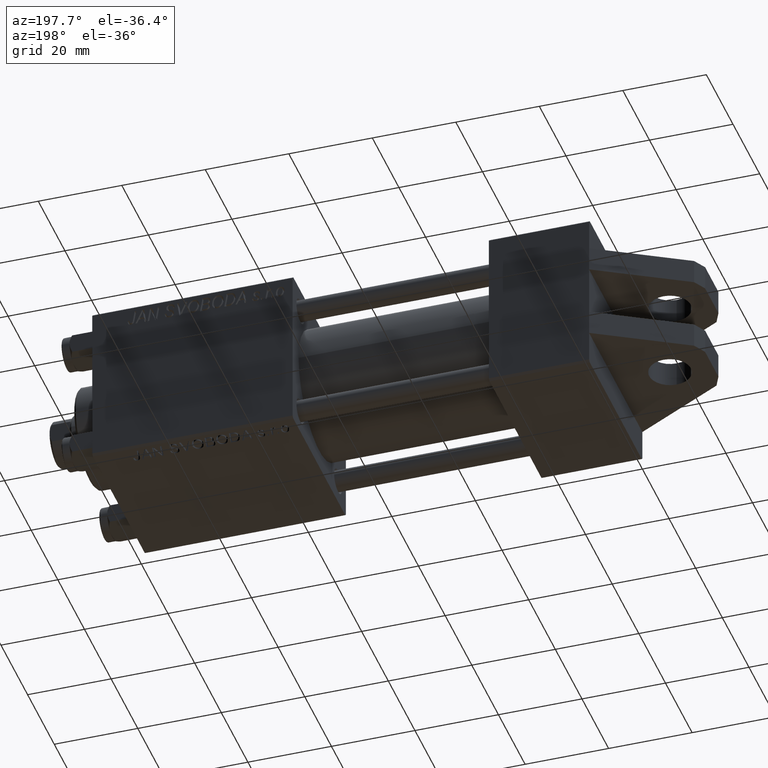
[diagram: clean part render]
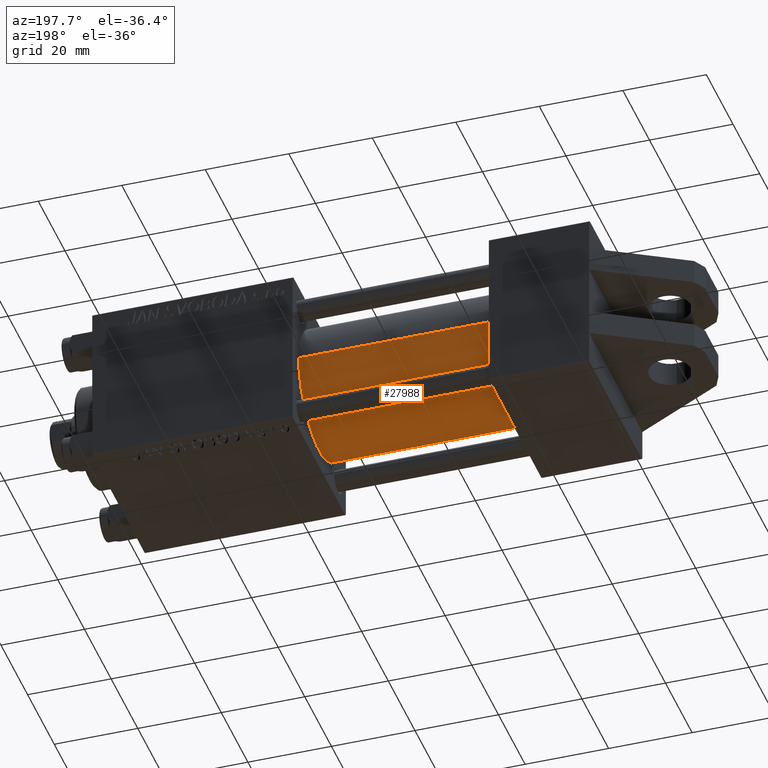
[diagram: same view with one face highlighted and labeled with its STEP entity id]
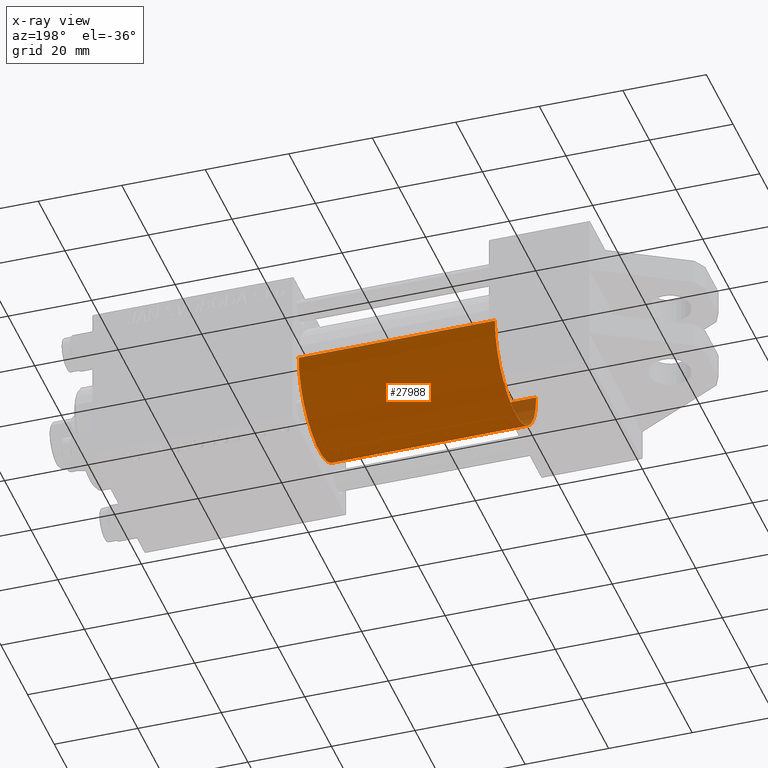
[diagram: x-ray of the same camera — body ghosted, the highlighted face saturated]
A machine part, auxiliary view. The second image highlights one B-rep face of the part: STEP entity #27988.
The next image is the same camera in x-ray: the body ghosted, the highlighted face saturated — about 2% of this face is hidden behind the body in this view.
In plain terms, the highlighted cylindrical surface (partial cylindrical patch) has radius 15.5 mm, axis along (-1, -0, 0).
Its self-contained STEP definition (entity closure, byte-faithful):
#2973 = EDGE_CURVE ( 'NONE', #9373, #36715, #16806, .T. ) ;
#4060 = DIRECTION ( 'NONE',  ( 0.000000000000000000, 0.000000000000000000, 1.000000000000000000 ) ) ;
#4703 = AXIS2_PLACEMENT_3D ( 'NONE', #19545, #27079, #15783 ) ;
#5467 = DIRECTION ( 'NONE',  ( -1.000000000000000000, -0.000000000000000000, -0.000000000000000000 ) ) ;
#5549 = VECTOR ( 'NONE', #5467, 1000.000000000000000 ) ;
#5715 = EDGE_CURVE ( 'NONE', #36715, #40842, #24122, .T. ) ;
#7648 = EDGE_LOOP ( 'NONE', ( #37516, #21289, #40231, #31338 ) ) ;
#9373 = VERTEX_POINT ( 'NONE', #35404 ) ;
#10353 = DIRECTION ( 'NONE',  ( 0.000000000000000000, 0.000000000000000000, 1.000000000000000000 ) ) ;
#11091 = DIRECTION ( 'NONE',  ( -1.000000000000000000, -0.000000000000000000, -0.000000000000000000 ) ) ;
#15783 = DIRECTION ( 'NONE',  ( 0.000000000000000000, 0.000000000000000000, -1.000000000000000000 ) ) ;
#16806 = LINE ( 'NONE', #28344, #24933 ) ;
#16974 = CARTESIAN_POINT ( 'NONE',  ( 71.00000000000001421, -3.469446951953614189E-15, 15.50000000000000000 ) ) ;
#17996 = LINE ( 'NONE', #37069, #5549 ) ;
#18379 = CYLINDRICAL_SURFACE ( 'NONE', #22147, 15.50000000000000000 ) ;
#19545 = CARTESIAN_POINT ( 'NONE',  ( 71.00000000000001421, -3.469446951953614189E-15, 0.000000000000000000 ) ) ;
#21289 = ORIENTED_EDGE ( 'NONE', *, *, #2973, .T. ) ;
#21643 = CARTESIAN_POINT ( 'NONE',  ( 71.00000000000001421, -3.469446951953614189E-15, 0.000000000000000000 ) ) ;
#22147 = AXIS2_PLACEMENT_3D ( 'NONE', #21643, #11091, #10353 ) ;
#22997 = CARTESIAN_POINT ( 'NONE',  ( 24.00000000000000000, -1.571244413275216631E-15, -15.50000000000000000 ) ) ;
#24122 = CIRCLE ( 'NONE', #28920, 15.50000000000000000 ) ;
#24933 = VECTOR ( 'NONE', #43649, 1000.000000000000000 ) ;
#27079 = DIRECTION ( 'NONE',  ( 1.000000000000000000, 0.000000000000000000, 0.000000000000000000 ) ) ;
#27146 = CIRCLE ( 'NONE', #4703, 15.50000000000000000 ) ;
#27988 = ADVANCED_FACE ( 'NONE', ( #48761 ), #18379, .T. ) ;
#28344 = CARTESIAN_POINT ( 'NONE',  ( 71.00000000000001421, -1.571244413275216631E-15, -15.50000000000000000 ) ) ;
#28920 = AXIS2_PLACEMENT_3D ( 'NONE', #41969, #45757, #4060 ) ;
#31338 = ORIENTED_EDGE ( 'NONE', *, *, #47496, .F. ) ;
#32070 = CARTESIAN_POINT ( 'NONE',  ( 24.00000000000000000, -3.469446951953614189E-15, 15.50000000000000000 ) ) ;
#34048 = EDGE_CURVE ( 'NONE', #9373, #36796, #27146, .T. ) ;
#35404 = CARTESIAN_POINT ( 'NONE',  ( 71.00000000000001421, -1.571244413275216631E-15, -15.50000000000000000 ) ) ;
#36715 = VERTEX_POINT ( 'NONE', #22997 ) ;
#36796 = VERTEX_POINT ( 'NONE', #16974 ) ;
#37069 = CARTESIAN_POINT ( 'NONE',  ( 71.00000000000001421, -3.469446951953614189E-15, 15.50000000000000000 ) ) ;
#37516 = ORIENTED_EDGE ( 'NONE', *, *, #34048, .F. ) ;
#40231 = ORIENTED_EDGE ( 'NONE', *, *, #5715, .T. ) ;
#40842 = VERTEX_POINT ( 'NONE', #32070 ) ;
#41969 = CARTESIAN_POINT ( 'NONE',  ( 24.00000000000000000, -3.469446951953614189E-15, 0.000000000000000000 ) ) ;
#43649 = DIRECTION ( 'NONE',  ( -1.000000000000000000, -0.000000000000000000, -0.000000000000000000 ) ) ;
#45757 = DIRECTION ( 'NONE',  ( 1.000000000000000000, 0.000000000000000000, 0.000000000000000000 ) ) ;
#47496 = EDGE_CURVE ( 'NONE', #36796, #40842, #17996, .T. ) ;
#48761 = FACE_OUTER_BOUND ( 'NONE', #7648, .T. ) ;